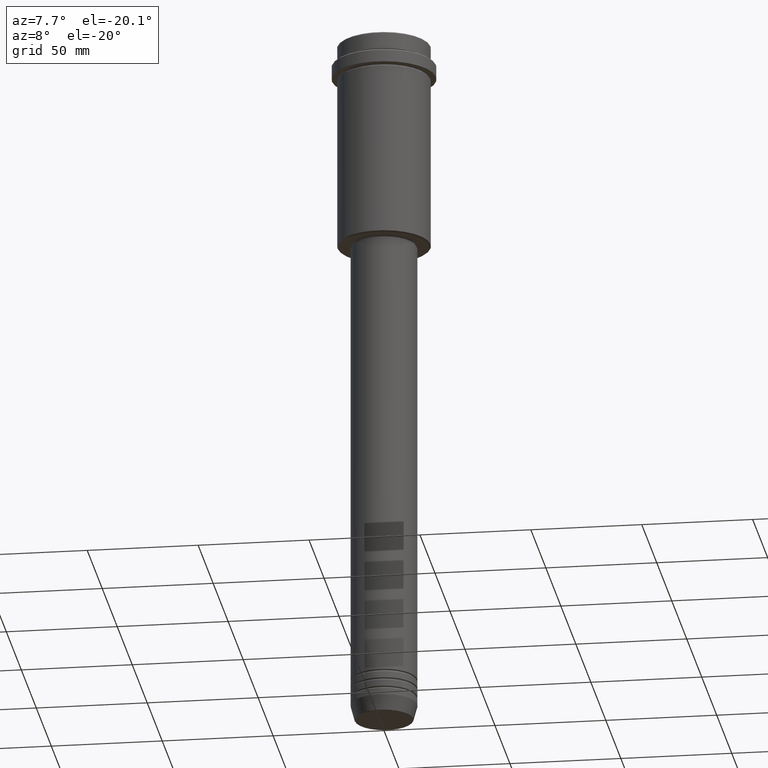
[diagram: clean part render]
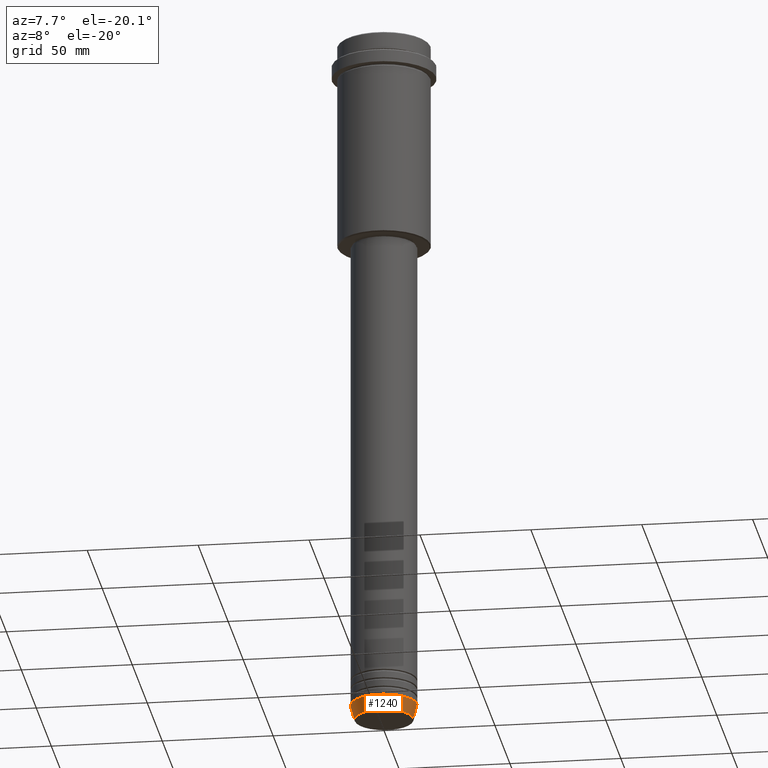
[diagram: same view with one face highlighted and labeled with its STEP entity id]
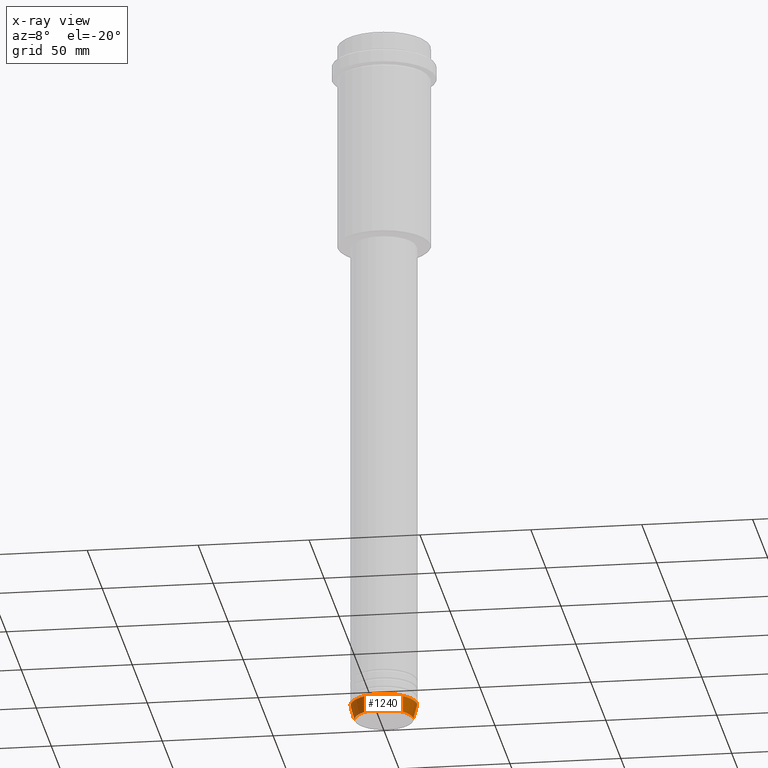
[diagram: x-ray of the same camera — body ghosted, the highlighted face saturated]
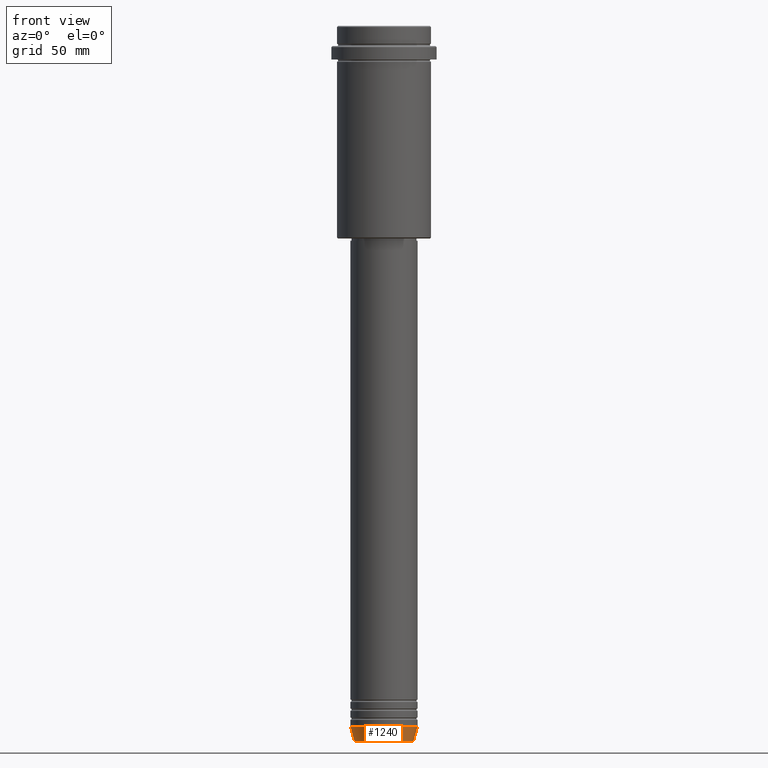
[diagram: same view with one face highlighted and labeled with its STEP entity id]
A machine part, auxiliary view. The second image highlights one B-rep face of the part: STEP entity #1240.
The next image is the same camera in x-ray: the body ghosted, the highlighted face saturated — about 0% of this face is hidden behind the body in this view.
A second angle (front view) of the same face is appended — the face is thin or edge-on in the first view.
In plain terms, the highlighted conical surface has half-angle 15 deg.
Its self-contained STEP definition (entity closure, byte-faithful):
#36 = LINE ( 'NONE', #1037, #1297 ) ;
#44 = DIRECTION ( 'NONE',  ( 1.000000000000000000, 0.000000000000000000, 0.000000000000000000 ) ) ;
#87 = DIRECTION ( 'NONE',  ( 1.000000000000000000, 0.000000000000000000, 0.000000000000000000 ) ) ;
#144 = ORIENTED_EDGE ( 'NONE', *, *, #754, .T. ) ;
#156 = CONICAL_SURFACE ( 'NONE', #823, 15.00000000000000000, 0.2617993877991500740 ) ;
#177 = VECTOR ( 'NONE', #679, 1000.000000000000000 ) ;
#178 = CARTESIAN_POINT ( 'NONE',  ( 15.00000000000000000, 0.000000000000000000, -313.0000000000000000 ) ) ;
#185 = CARTESIAN_POINT ( 'NONE',  ( 0.000000000000000000, 0.000000000000000000, -313.0000000000000000 ) ) ;
#241 = CARTESIAN_POINT ( 'NONE',  ( 15.00000000000000000, 0.000000000000000000, -313.0000000000000000 ) ) ;
#253 = EDGE_LOOP ( 'NONE', ( #643, #1013, #144, #746 ) ) ;
#278 = CARTESIAN_POINT ( 'NONE',  ( 0.000000000000000000, 0.000000000000000000, -319.6294095225513274 ) ) ;
#322 = CARTESIAN_POINT ( 'NONE',  ( -15.00000000000000000, 1.836970198721029589E-15, -313.0000000000000000 ) ) ;
#385 = DIRECTION ( 'NONE',  ( -0.000000000000000000, -0.000000000000000000, 1.000000000000000000 ) ) ;
#399 = CIRCLE ( 'NONE', #864, 15.00000000000000000 ) ;
#452 = EDGE_CURVE ( 'NONE', #543, #804, #36, .T. ) ;
#504 = CARTESIAN_POINT ( 'NONE',  ( -13.22365507213718772, 1.728200442216588386E-15, -319.6294095225513274 ) ) ;
#543 = VERTEX_POINT ( 'NONE', #504 ) ;
#555 = LINE ( 'NONE', #241, #177 ) ;
#570 = DIRECTION ( 'NONE',  ( 1.000000000000000000, 0.000000000000000000, 0.000000000000000000 ) ) ;
#582 = VERTEX_POINT ( 'NONE', #1406 ) ;
#643 = ORIENTED_EDGE ( 'NONE', *, *, #452, .F. ) ;
#679 = DIRECTION ( 'NONE',  ( 0.2588190451025213501, 0.000000000000000000, 0.9659258262890680902 ) ) ;
#707 = AXIS2_PLACEMENT_3D ( 'NONE', #278, #1362, #44 ) ;
#746 = ORIENTED_EDGE ( 'NONE', *, *, #1065, .F. ) ;
#754 = EDGE_CURVE ( 'NONE', #582, #1103, #555, .T. ) ;
#804 = VERTEX_POINT ( 'NONE', #322 ) ;
#823 = AXIS2_PLACEMENT_3D ( 'NONE', #1357, #1361, #570 ) ;
#864 = AXIS2_PLACEMENT_3D ( 'NONE', #185, #385, #87 ) ;
#925 = EDGE_CURVE ( 'NONE', #543, #582, #1049, .T. ) ;
#1013 = ORIENTED_EDGE ( 'NONE', *, *, #925, .T. ) ;
#1021 = DIRECTION ( 'NONE',  ( -0.2588190451025213501, 3.169619151431772337E-17, 0.9659258262890680902 ) ) ;
#1035 = FACE_OUTER_BOUND ( 'NONE', #253, .T. ) ;
#1037 = CARTESIAN_POINT ( 'NONE',  ( -15.00000000000000000, 1.836970198721029589E-15, -313.0000000000000000 ) ) ;
#1049 = CIRCLE ( 'NONE', #707, 13.22365507213718772 ) ;
#1065 = EDGE_CURVE ( 'NONE', #804, #1103, #399, .T. ) ;
#1103 = VERTEX_POINT ( 'NONE', #178 ) ;
#1240 = ADVANCED_FACE ( 'NONE', ( #1035 ), #156, .T. ) ;
#1297 = VECTOR ( 'NONE', #1021, 1000.000000000000000 ) ;
#1357 = CARTESIAN_POINT ( 'NONE',  ( 0.000000000000000000, 0.000000000000000000, -313.0000000000000000 ) ) ;
#1361 = DIRECTION ( 'NONE',  ( -0.000000000000000000, -0.000000000000000000, 1.000000000000000000 ) ) ;
#1362 = DIRECTION ( 'NONE',  ( -0.000000000000000000, -0.000000000000000000, 1.000000000000000000 ) ) ;
#1406 = CARTESIAN_POINT ( 'NONE',  ( 13.22365507213718772, 0.000000000000000000, -319.6294095225513274 ) ) ;